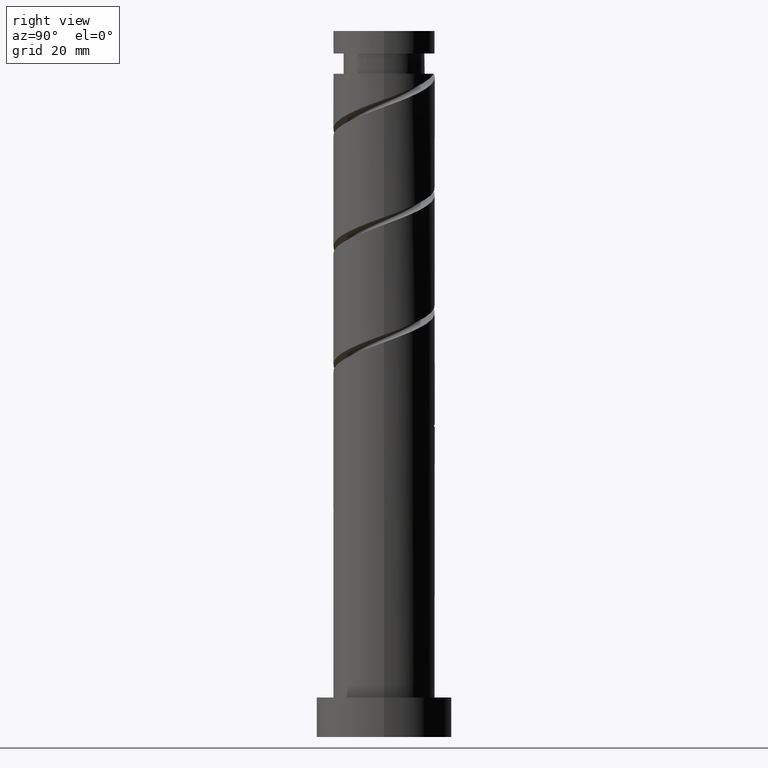
[diagram: clean part render]
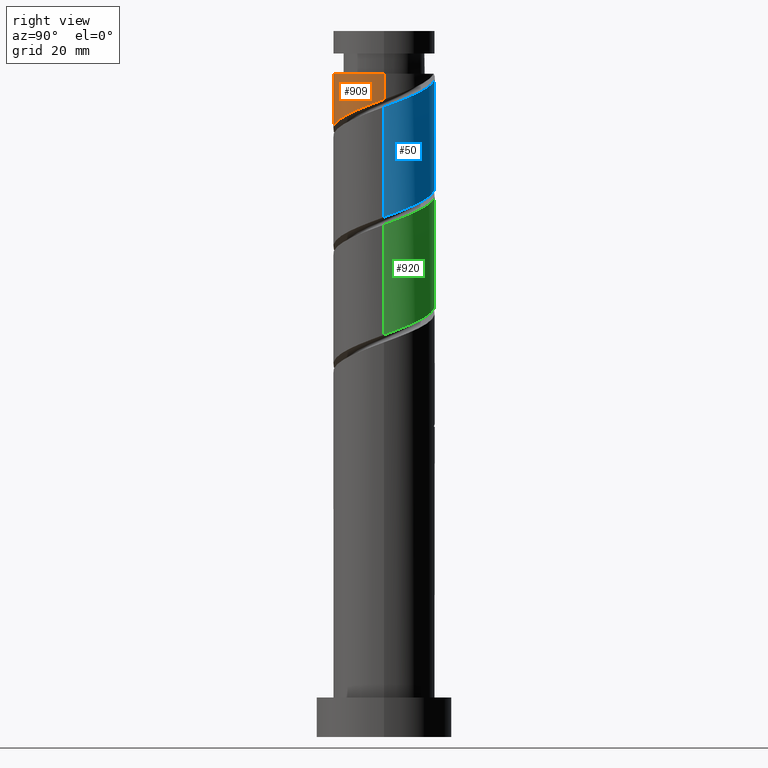
[diagram: same view with three faces highlighted in distinct colors, each labeled with its STEP entity id]
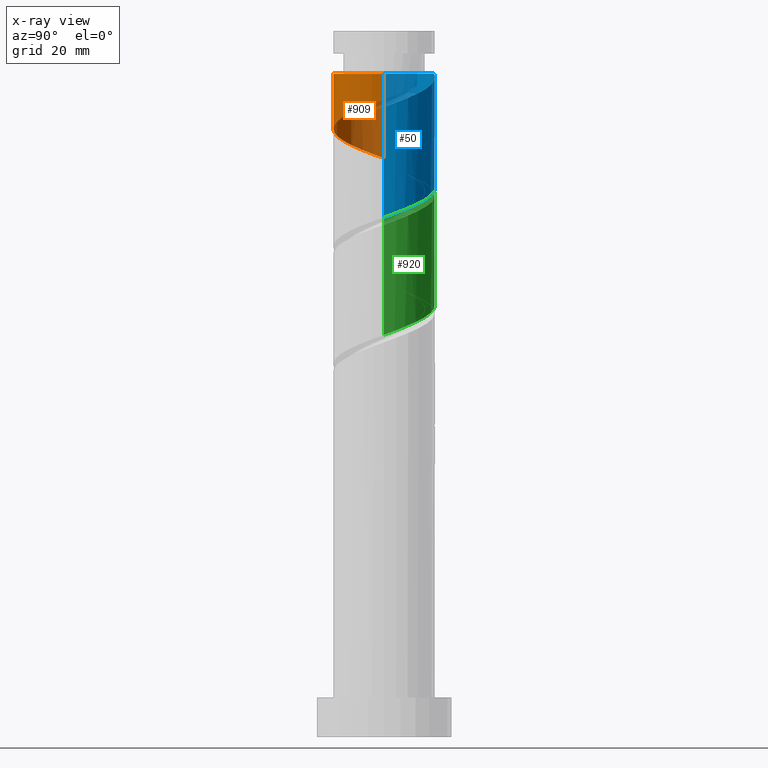
[diagram: x-ray of the same camera — body ghosted, the three highlighted faces saturated]
A machine part, right view with three faces highlighted in distinct colors.
The next image is the same camera in x-ray (body ghosted, the three faces saturated) — at least one of them is partly hidden behind the body in this view.
Their STEP definitions:

[orange] entity #909 — the highlighted cylindrical surface (partial cylindrical patch) has radius 9 mm, axis along (-0, -0, -1).
#1 = DIRECTION ( 'NONE',  ( -0.000000000000000000, -0.000000000000000000, -1.000000000000000000 ) ) ;
#28 = EDGE_CURVE ( 'NONE', #1074, #286, #1481, .T. ) ;
#54 = CARTESIAN_POINT ( 'NONE',  ( 9.000000000000000000, 4.557903246094585898E-15, 112.8787152593785379 ) ) ;
#152 = CARTESIAN_POINT ( 'NONE',  ( 0.000000000000000000, 0.000000000000000000, 117.4222461512415805 ) ) ;
#174 = VERTEX_POINT ( 'NONE', #1091 ) ;
#176 = CARTESIAN_POINT ( 'NONE',  ( -1.790977386791917647, -8.819999999999998508, 107.0055794845748807 ) ) ;
#228 = CARTESIAN_POINT ( 'NONE',  ( 6.082819795241432459, -6.633197067675506098, 110.1305794845749233 ) ) ;
#286 = VERTEX_POINT ( 'NONE', #812 ) ;
#296 = CARTESIAN_POINT ( 'NONE',  ( -9.000000000000000000, -0.5127636370178977332, 102.6515596819191387 ) ) ;
#341 = EDGE_CURVE ( 'NONE', #174, #1074, #1103, .T. ) ;
#350 = CARTESIAN_POINT ( 'NONE',  ( 3.735334782763716444, -8.188239985532636211, 109.0889128179082377 ) ) ;
#372 = CARTESIAN_POINT ( 'NONE',  ( 9.000000000000001776, 1.102182119232617911E-15, 125.0000000000000000 ) ) ;
#407 = LINE ( 'NONE', #655, #897 ) ;
#430 = CARTESIAN_POINT ( 'NONE',  ( -8.779858894525441215, -2.438444975412141336, 103.3597461512415805 ) ) ;
#482 = CARTESIAN_POINT ( 'NONE',  ( -0.3940266231295084798, -9.103662951040936591, 107.5264128179082661 ) ) ;
#521 = EDGE_CURVE ( 'NONE', #174, #1167, #642, .T. ) ;
#553 = CARTESIAN_POINT ( 'NONE',  ( -3.187928150454328868, -8.536337048959056872, 106.4847461512415805 ) ) ;
#592 = CARTESIAN_POINT ( 'NONE',  ( 8.536337048959056872, -3.187928150454328868, 111.6930794845749375 ) ) ;
#597 = EDGE_CURVE ( 'NONE', #1167, #286, #407, .T. ) ;
#634 = CARTESIAN_POINT ( 'NONE',  ( -9.000000000000000000, 0.000000000000000000, 117.4222461512415805 ) ) ;
#642 = CIRCLE ( 'NONE', #1429, 9.000000000000000000 ) ;
#655 = CARTESIAN_POINT ( 'NONE',  ( -9.000000000000001776, 0.000000000000000000, 125.0000000000000000 ) ) ;
#667 = CARTESIAN_POINT ( 'NONE',  ( -8.941760922783190679, -1.022209176141316567, 102.8389128179082519 ) ) ;
#668 = VECTOR ( 'NONE', #1452, 1000.000000000000000 ) ;
#676 = CARTESIAN_POINT ( 'NONE',  ( -4.428850604632755150, -7.834876024663318006, 105.9639128179082661 ) ) ;
#715 = CARTESIAN_POINT ( 'NONE',  ( 2.438444975412140447, -8.779858894525441215, 108.5680794845748949 ) ) ;
#720 = FACE_OUTER_BOUND ( 'NONE', #1435, .T. ) ;
#767 = AXIS2_PLACEMENT_3D ( 'NONE', #1095, #1, #1222 ) ;
#782 = DIRECTION ( 'NONE',  ( -0.000000000000000000, -0.000000000000000000, -1.000000000000000000 ) ) ;
#795 = CARTESIAN_POINT ( 'NONE',  ( -5.669773058811180988, -7.133415000367572922, 105.4430794845749233 ) ) ;
#812 = CARTESIAN_POINT ( 'NONE',  ( -9.000000000000000000, -5.517461824219762125E-15, 102.4620485927118523 ) ) ;
#839 = CARTESIAN_POINT ( 'NONE',  ( 7.834876024663318006, -4.428850604632755150, 111.1722461512415663 ) ) ;
#883 = DIRECTION ( 'NONE',  ( -0.000000000000000000, -0.000000000000000000, -1.000000000000000000 ) ) ;
#897 = VECTOR ( 'NONE', #883, 1000.000000000000000 ) ;
#909 = ADVANCED_FACE ( 'NONE', ( #720 ), #1340, .T. ) ;
#917 = CARTESIAN_POINT ( 'NONE',  ( -9.000000000000000000, -5.517461824219762125E-15, 102.4620485927118523 ) ) ;
#923 = ORIENTED_EDGE ( 'NONE', *, *, #28, .F. ) ;
#941 = ORIENTED_EDGE ( 'NONE', *, *, #341, .F. ) ;
#964 = CARTESIAN_POINT ( 'NONE',  ( 9.000000000000001776, -0.9045340337332837821, 112.5444106839706677 ) ) ;
#1038 = CARTESIAN_POINT ( 'NONE',  ( -6.633197067675506098, -6.082819795241432459, 104.9222461512415805 ) ) ;
#1074 = VERTEX_POINT ( 'NONE', #54 ) ;
#1083 = CARTESIAN_POINT ( 'NONE',  ( 8.819999999999998508, -1.790977386791918313, 112.2139128179082661 ) ) ;
#1091 = CARTESIAN_POINT ( 'NONE',  ( 9.000000000000000000, 1.102182119232617714E-15, 117.4222461512415805 ) ) ;
#1095 = CARTESIAN_POINT ( 'NONE',  ( 0.000000000000000000, 0.000000000000000000, 125.0000000000000000 ) ) ;
#1103 = LINE ( 'NONE', #372, #668 ) ;
#1159 = CARTESIAN_POINT ( 'NONE',  ( -7.596621076539832984, -5.032224590115292884, 104.4014128179082377 ) ) ;
#1167 = VERTEX_POINT ( 'NONE', #634 ) ;
#1203 = CARTESIAN_POINT ( 'NONE',  ( 1.022209176141316345, -8.941760922783190679, 108.0472461512415947 ) ) ;
#1222 = DIRECTION ( 'NONE',  ( -1.000000000000000000, 0.000000000000000000, 0.000000000000000000 ) ) ;
#1248 = DIRECTION ( 'NONE',  ( -1.000000000000000000, 0.000000000000000000, 0.000000000000000000 ) ) ;
#1324 = CARTESIAN_POINT ( 'NONE',  ( 5.032224590115292884, -7.596621076539833872, 109.6097461512415947 ) ) ;
#1340 = CYLINDRICAL_SURFACE ( 'NONE', #767, 9.000000000000001776 ) ;
#1391 = ORIENTED_EDGE ( 'NONE', *, *, #597, .T. ) ;
#1429 = AXIS2_PLACEMENT_3D ( 'NONE', #152, #782, #1248 ) ;
#1435 = EDGE_LOOP ( 'NONE', ( #941, #1574, #1391, #923 ) ) ;
#1442 = CARTESIAN_POINT ( 'NONE',  ( 7.133415000367572922, -5.669773058811180988, 110.6514128179082377 ) ) ;
#1452 = DIRECTION ( 'NONE',  ( -0.000000000000000000, -0.000000000000000000, -1.000000000000000000 ) ) ;
#1481 =( BOUNDED_CURVE ( )  B_SPLINE_CURVE ( 2, ( #1563, #964, #1083, #592, #839, #1442, #228, #1324, #350, #715, #1203, #482, #176, #553, #676, #795, #1038, #1159, #1521, #430, #667, #296, #917 ),
 .UNSPECIFIED., .F., .T. ) 
 B_SPLINE_CURVE_WITH_KNOTS ( ( 3, 2, 2, 2, 2, 2, 2, 2, 2, 2, 2, 3 ),
 ( 0.3045322023138550827, 0.3125000000000000000, 0.3250000000000000111, 0.3375000000000000222, 0.3499999999999999778, 0.3624999999999999889, 0.3750000000000000000, 0.3875000000000000111, 0.4000000000000000222, 0.4124999999999999778, 0.4249999999999999889, 0.4295322023138551382 ),
 .UNSPECIFIED. ) 
 CURVE ( )  GEOMETRIC_REPRESENTATION_ITEM ( )  RATIONAL_B_SPLINE_CURVE ( ( 0.9039174447099308507, 0.9019565955404600377, 0.9090909090909083945, 0.8978984914501245695, 0.9090909090909083945, 0.8978984914501245695, 0.9090909090909083945, 0.8978984914501245695, 0.9090909090909083945, 0.8978984914501245695, 0.9090909090909083945, 0.8978984914501245695, 0.9090909090909083945, 0.8978984914501245695, 0.9090909090909083945, 0.8978984914501245695, 0.9090909090909083945, 0.8978984914501245695, 0.9090909090909083945, 0.8978984914501245695, 0.9090909090909083945, 0.9050328050005729263, 0.9039174447099307397 ) ) 
 REPRESENTATION_ITEM ( '' )  );
#1521 = CARTESIAN_POINT ( 'NONE',  ( -8.188239985532636211, -3.735334782763716444, 103.8805794845749233 ) ) ;
#1563 = CARTESIAN_POINT ( 'NONE',  ( 9.000000000000000000, 4.557903246094586687E-15, 112.8787152593785521 ) ) ;
#1574 = ORIENTED_EDGE ( 'NONE', *, *, #521, .T. ) ;

[blue] entity #50 — the highlighted cylindrical surface (partial cylindrical patch) has radius 9 mm, axis along (-0, -0, -1).
#14 = CARTESIAN_POINT ( 'NONE',  ( 7.133415000367588910, 5.669773058811186317, 113.7764128179082519 ) ) ;
#37 = CARTESIAN_POINT ( 'NONE',  ( 6.633197067675507874, 6.082819795241432459, 94.50557948457489488 ) ) ;
#50 = ADVANCED_FACE ( 'NONE', ( #1503 ), #402, .T. ) ;
#62 = DIRECTION ( 'NONE',  ( -1.000000000000000000, 0.000000000000000000, 0.000000000000000000 ) ) ;
#90 = VERTEX_POINT ( 'NONE', #155 ) ;
#149 = CARTESIAN_POINT ( 'NONE',  ( -9.000000000000000000, -5.517461824219762125E-15, 102.4620485927118523 ) ) ;
#155 = CARTESIAN_POINT ( 'NONE',  ( 9.000000000000000000, 1.259420633789293503E-14, 92.04538192604519509 ) ) ;
#166 = CARTESIAN_POINT ( 'NONE',  ( 0.000000000000000000, 0.000000000000000000, 125.0000000000000000 ) ) ;
#168 = CARTESIAN_POINT ( 'NONE',  ( -1.022209176141317233, 8.941760922783190679, 97.63057948457489488 ) ) ;
#186 = DIRECTION ( 'NONE',  ( -0.000000000000000000, -0.000000000000000000, -1.000000000000000000 ) ) ;
#225 = CARTESIAN_POINT ( 'NONE',  ( 5.032224590115305318, 7.596621076539840089, 114.8180794845749091 ) ) ;
#250 = LINE ( 'NONE', #605, #593 ) ;
#286 = VERTEX_POINT ( 'NONE', #812 ) ;
#289 = CARTESIAN_POINT ( 'NONE',  ( -7.834876024663318006, 4.428850604632753374, 100.7555794845749091 ) ) ;
#299 = CARTESIAN_POINT ( 'NONE',  ( 8.188239985532637988, 3.735334782763715111, 93.46391281790826611 ) ) ;
#338 = CIRCLE ( 'NONE', #740, 9.000000000000000000 ) ;
#391 = ORIENTED_EDGE ( 'NONE', *, *, #1170, .F. ) ;
#402 = CYLINDRICAL_SURFACE ( 'NONE', #562, 9.000000000000001776 ) ;
#405 = CARTESIAN_POINT ( 'NONE',  ( 9.000000000000000000, 0.5127636370179007308, 92.23489301525248152 ) ) ;
#407 = LINE ( 'NONE', #655, #897 ) ;
#425 = CARTESIAN_POINT ( 'NONE',  ( 4.428850604632756038, 7.834876024663318006, 95.54724615124156628 ) ) ;
#502 = CARTESIAN_POINT ( 'NONE',  ( -1.790977386791916315, 8.820000000000012719, 117.4222461512415805 ) ) ;
#520 = CARTESIAN_POINT ( 'NONE',  ( -8.819999999999998508, 1.790977386791917647, 101.7972461512415805 ) ) ;
#527 = CARTESIAN_POINT ( 'NONE',  ( 7.596621076539832984, 5.032224590115291107, 93.98474615124155207 ) ) ;
#546 = CARTESIAN_POINT ( 'NONE',  ( 1.790977386791918757, 8.819999999999998508, 96.58891281790823768 ) ) ;
#558 = ORIENTED_EDGE ( 'NONE', *, *, #994, .T. ) ;
#562 = AXIS2_PLACEMENT_3D ( 'NONE', #166, #186, #62 ) ;
#581 = ORIENTED_EDGE ( 'NONE', *, *, #1468, .F. ) ;
#593 = VECTOR ( 'NONE', #726, 1000.000000000000000 ) ;
#597 = EDGE_CURVE ( 'NONE', #1167, #286, #407, .T. ) ;
#605 = CARTESIAN_POINT ( 'NONE',  ( 9.000000000000001776, 1.102182119232617911E-15, 125.0000000000000000 ) ) ;
#632 = ORIENTED_EDGE ( 'NONE', *, *, #597, .F. ) ;
#634 = CARTESIAN_POINT ( 'NONE',  ( -9.000000000000000000, 0.000000000000000000, 117.4222461512415805 ) ) ;
#645 = CARTESIAN_POINT ( 'NONE',  ( -3.735334782763717332, 8.188239985532636211, 98.67224615124156628 ) ) ;
#655 = CARTESIAN_POINT ( 'NONE',  ( -9.000000000000001776, 0.000000000000000000, 125.0000000000000000 ) ) ;
#661 = CARTESIAN_POINT ( 'NONE',  ( 0.3940266231295071475, 9.103662951040936591, 97.10974615124159470 ) ) ;
#726 = DIRECTION ( 'NONE',  ( -0.000000000000000000, -0.000000000000000000, -1.000000000000000000 ) ) ;
#740 = AXIS2_PLACEMENT_3D ( 'NONE', #1153, #1040, #1402 ) ;
#761 = CARTESIAN_POINT ( 'NONE',  ( -5.032224590115294660, 7.596621076539832984, 99.19307948457493751 ) ) ;
#771 = CARTESIAN_POINT ( 'NONE',  ( -9.000000000000000000, 0.9045340337332890002, 102.1277440173039963 ) ) ;
#780 = CARTESIAN_POINT ( 'NONE',  ( -6.082819795241432459, 6.633197067675506098, 99.71391281790825190 ) ) ;
#789 = CARTESIAN_POINT ( 'NONE',  ( -7.133415000367573811, 5.669773058811180988, 100.2347461512415805 ) ) ;
#812 = CARTESIAN_POINT ( 'NONE',  ( -9.000000000000000000, -5.517461824219762125E-15, 102.4620485927118523 ) ) ;
#862 = CARTESIAN_POINT ( 'NONE',  ( 9.000000000000010658, 3.178537790039623870E-15, 111.5491103764379659 ) ) ;
#883 = DIRECTION ( 'NONE',  ( -0.000000000000000000, -0.000000000000000000, -1.000000000000000000 ) ) ;
#897 = VECTOR ( 'NONE', #883, 1000.000000000000000 ) ;
#931 = CARTESIAN_POINT ( 'NONE',  ( 9.000000000000010658, 3.178537790039623476E-15, 111.5491103764379659 ) ) ;
#967 = CARTESIAN_POINT ( 'NONE',  ( -0.3940266231294912158, 9.103662951040949025, 116.9014128179082235 ) ) ;
#973 = CARTESIAN_POINT ( 'NONE',  ( 8.820000000000012719, 1.790977386791916759, 112.2139128179082235 ) ) ;
#980 = CARTESIAN_POINT ( 'NONE',  ( 9.000000000000012434, 0.9045340337332952174, 111.8834149518458361 ) ) ;
#994 = EDGE_CURVE ( 'NONE', #1167, #1104, #338, .T. ) ;
#1013 = CARTESIAN_POINT ( 'NONE',  ( 8.941760922783190679, 1.022209176141315679, 92.42224615124158049 ) ) ;
#1040 = DIRECTION ( 'NONE',  ( -0.000000000000000000, -0.000000000000000000, -1.000000000000000000 ) ) ;
#1104 = VERTEX_POINT ( 'NONE', #1379 ) ;
#1105 = CARTESIAN_POINT ( 'NONE',  ( 7.834876024663329552, 4.428850604632757815, 113.2555794845749233 ) ) ;
#1126 = CARTESIAN_POINT ( 'NONE',  ( -2.438444975412141336, 8.779858894525441215, 98.15141281790825190 ) ) ;
#1139 = EDGE_LOOP ( 'NONE', ( #581, #1527, #391, #632, #558 ) ) ;
#1153 = CARTESIAN_POINT ( 'NONE',  ( 0.000000000000000000, 0.000000000000000000, 117.4222461512415805 ) ) ;
#1167 = VERTEX_POINT ( 'NONE', #634 ) ;
#1170 = EDGE_CURVE ( 'NONE', #286, #90, #1206, .T. ) ;
#1195 = VERTEX_POINT ( 'NONE', #931 ) ;
#1199 = CARTESIAN_POINT ( 'NONE',  ( 6.082819795241444893, 6.633197067675514091, 114.2972461512415663 ) ) ;
#1206 =( BOUNDED_CURVE ( )  B_SPLINE_CURVE ( 2, ( #149, #771, #520, #1488, #289, #789, #780, #761, #645, #1126, #168, #661, #546, #1515, #425, #1495, #37, #527, #299, #1272, #1013, #405, #1311 ),
 .UNSPECIFIED., .F., .T. ) 
 B_SPLINE_CURVE_WITH_KNOTS ( ( 3, 2, 2, 2, 2, 2, 2, 2, 2, 2, 2, 3 ),
 ( 0.4295322023138551382, 0.4375000000000000000, 0.4500000000000000111, 0.4625000000000000222, 0.4749999999999999778, 0.4874999999999999889, 0.5000000000000000000, 0.5124999999999999556, 0.5250000000000000222, 0.5374999999999999778, 0.5500000000000000444, 0.5545322023138551382 ),
 .UNSPECIFIED. ) 
 CURVE ( )  GEOMETRIC_REPRESENTATION_ITEM ( )  RATIONAL_B_SPLINE_CURVE ( ( 0.9039174447099307397, 0.9019565955404600377, 0.9090909090909083945, 0.8978984914501245695, 0.9090909090909083945, 0.8978984914501245695, 0.9090909090909083945, 0.8978984914501245695, 0.9090909090909083945, 0.8978984914501245695, 0.9090909090909083945, 0.8978984914501245695, 0.9090909090909083945, 0.8978984914501245695, 0.9090909090909083945, 0.8978984914501245695, 0.9090909090909083945, 0.8978984914501245695, 0.9090909090909083945, 0.8978984914501245695, 0.9090909090909083945, 0.9050328050005729263, 0.9039174447099307397 ) ) 
 REPRESENTATION_ITEM ( '' )  );
#1231 = CARTESIAN_POINT ( 'NONE',  ( 2.438444975412149329, 8.779858894525451873, 115.8597461512415663 ) ) ;
#1272 = CARTESIAN_POINT ( 'NONE',  ( 8.779858894525442992, 2.438444975412140447, 92.94307948457490909 ) ) ;
#1311 = CARTESIAN_POINT ( 'NONE',  ( 9.000000000000000000, 1.259420633789293503E-14, 92.04538192604519509 ) ) ;
#1353 = CARTESIAN_POINT ( 'NONE',  ( 1.022209176141323006, 8.941760922783201337, 116.3805794845749091 ) ) ;
#1379 = CARTESIAN_POINT ( 'NONE',  ( -1.790977386791916093, 8.820000000000012719, 117.4222461512415805 ) ) ;
#1402 = DIRECTION ( 'NONE',  ( -1.000000000000000000, 0.000000000000000000, 0.000000000000000000 ) ) ;
#1439 = CARTESIAN_POINT ( 'NONE',  ( 3.735334782763727102, 8.188239985532646870, 115.3389128179082235 ) ) ;
#1446 = CARTESIAN_POINT ( 'NONE',  ( 8.536337048959071083, 3.187928150454328868, 112.7347461512415236 ) ) ;
#1468 = EDGE_CURVE ( 'NONE', #1195, #1104, #1537, .T. ) ;
#1479 = EDGE_CURVE ( 'NONE', #1195, #90, #250, .T. ) ;
#1488 = CARTESIAN_POINT ( 'NONE',  ( -8.536337048959060425, 3.187928150454327536, 101.2764128179082519 ) ) ;
#1495 = CARTESIAN_POINT ( 'NONE',  ( 5.669773058811181876, 7.133415000367572922, 95.02641281790826611 ) ) ;
#1503 = FACE_OUTER_BOUND ( 'NONE', #1139, .T. ) ;
#1515 = CARTESIAN_POINT ( 'NONE',  ( 3.187928150454329312, 8.536337048959056872, 96.06807948457488067 ) ) ;
#1527 = ORIENTED_EDGE ( 'NONE', *, *, #1479, .T. ) ;
#1537 =( BOUNDED_CURVE ( )  B_SPLINE_CURVE ( 2, ( #862, #980, #973, #1446, #1105, #14, #1199, #225, #1439, #1231, #1353, #967, #502 ),
 .UNSPECIFIED., .F., .T. ) 
 B_SPLINE_CURVE_WITH_KNOTS ( ( 3, 2, 2, 2, 2, 2, 3 ),
 ( 0.6795322023138552492, 0.6875000000000000000, 0.6999999999999999556, 0.7124999999999999112, 0.7249999999999998668, 0.7374999999999999334, 0.7499999999999998890 ),
 .UNSPECIFIED. ) 
 CURVE ( )  GEOMETRIC_REPRESENTATION_ITEM ( )  RATIONAL_B_SPLINE_CURVE ( ( 0.9039174447099369569, 0.9019565955404662549, 0.9090909090909147228, 0.8978984914501307868, 0.9090909090909147228, 0.8978984914501307868, 0.9090909090909147228, 0.8978984914501307868, 0.9090909090909147228, 0.8978984914501307868, 0.9090909090909147228, 0.8978984914501308978, 0.9090909090909146117 ) ) 
 REPRESENTATION_ITEM ( '' )  );

[green] entity #920 — the highlighted cylindrical surface (partial cylindrical patch) has radius 9 mm, axis along (-0, -0, -1).
#71 = EDGE_CURVE ( 'NONE', #682, #616, #1278, .T. ) ;
#78 = CARTESIAN_POINT ( 'NONE',  ( -0.3940266231295038724, 9.103662951040947249, 96.06807948457488067 ) ) ;
#87 = CARTESIAN_POINT ( 'NONE',  ( 9.000000000000010658, 7.856385858399825439E-15, 90.71577704310462309 ) ) ;
#111 = EDGE_CURVE ( 'NONE', #750, #1027, #412, .T. ) ;
#116 = CARTESIAN_POINT ( 'NONE',  ( -8.188239985532646870, 3.735334782763724881, 99.71391281790825190 ) ) ;
#181 = CARTESIAN_POINT ( 'NONE',  ( -3.735334782763717332, 8.188239985532636211, 77.83891281790825190 ) ) ;
#192 = CARTESIAN_POINT ( 'NONE',  ( 9.000000000000000000, 1.259420633789293503E-14, 71.21204859271185228 ) ) ;
#209 = ORIENTED_EDGE ( 'NONE', *, *, #71, .F. ) ;
#226 = CARTESIAN_POINT ( 'NONE',  ( 9.000000000000010658, 7.856385858399825439E-15, 90.71577704310462309 ) ) ;
#242 = DIRECTION ( 'NONE',  ( -1.000000000000000000, 0.000000000000000000, 0.000000000000000000 ) ) ;
#284 = CARTESIAN_POINT ( 'NONE',  ( 8.188239985532637988, 3.735334782763715111, 72.63057948457490909 ) ) ;
#307 = CARTESIAN_POINT ( 'NONE',  ( -8.819999999999998508, 1.790977386791917647, 80.96391281790822347 ) ) ;
#320 = CARTESIAN_POINT ( 'NONE',  ( 7.133415000367588910, 5.669773058811186317, 92.94307948457490909 ) ) ;
#329 = CARTESIAN_POINT ( 'NONE',  ( 6.082819795241444893, 6.633197067675514091, 93.46391281790823768 ) ) ;
#347 = CARTESIAN_POINT ( 'NONE',  ( -8.941760922783201337, 1.022209176141320564, 100.7555794845748807 ) ) ;
#362 = DIRECTION ( 'NONE',  ( -0.000000000000000000, -0.000000000000000000, -1.000000000000000000 ) ) ;
#398 = CARTESIAN_POINT ( 'NONE',  ( 7.596621076539832984, 5.032224590115291107, 73.15141281790823768 ) ) ;
#412 = LINE ( 'NONE', #1252, #814 ) ;
#418 = CARTESIAN_POINT ( 'NONE',  ( 1.790977386791918757, 8.819999999999998508, 75.75557948457490909 ) ) ;
#453 = CARTESIAN_POINT ( 'NONE',  ( -5.669773058811186317, 7.133415000367587133, 98.15141281790822347 ) ) ;
#484 = EDGE_CURVE ( 'NONE', #616, #1027, #600, .T. ) ;
#490 = FACE_OUTER_BOUND ( 'NONE', #869, .T. ) ;
#523 = CARTESIAN_POINT ( 'NONE',  ( 9.000000000000000000, 0.5127636370179007308, 71.40155968191912450 ) ) ;
#526 = DIRECTION ( 'NONE',  ( -0.000000000000000000, -0.000000000000000000, -1.000000000000000000 ) ) ;
#539 = CARTESIAN_POINT ( 'NONE',  ( 6.633197067675507874, 6.082819795241432459, 73.67224615124155207 ) ) ;
#554 = CARTESIAN_POINT ( 'NONE',  ( 9.000000000000000000, 1.259420633789293503E-14, 71.21204859271185228 ) ) ;
#571 = CARTESIAN_POINT ( 'NONE',  ( -1.790977386791916315, 8.820000000000012719, 96.58891281790823768 ) ) ;
#600 =( BOUNDED_CURVE ( )  B_SPLINE_CURVE ( 2, ( #614, #1404, #307, #921, #802, #1165, #1285, #1128, #181, #763, #891, #647, #418, #1042, #903, #1382, #539, #398, #284, #1137, #1525, #523, #192 ),
 .UNSPECIFIED., .F., .T. ) 
 B_SPLINE_CURVE_WITH_KNOTS ( ( 3, 2, 2, 2, 2, 2, 2, 2, 2, 2, 2, 3 ),
 ( 0.6795322023138552492, 0.6875000000000000000, 0.6999999999999999556, 0.7125000000000000222, 0.7249999999999999778, 0.7375000000000000444, 0.7500000000000000000, 0.7624999999999999556, 0.7750000000000000222, 0.7874999999999999778, 0.8000000000000000444, 0.8045322023138551382 ),
 .UNSPECIFIED. ) 
 CURVE ( )  GEOMETRIC_REPRESENTATION_ITEM ( )  RATIONAL_B_SPLINE_CURVE ( ( 0.9039174447099306287, 0.9019565955404600377, 0.9090909090909083945, 0.8978984914501245695, 0.9090909090909083945, 0.8978984914501245695, 0.9090909090909083945, 0.8978984914501245695, 0.9090909090909083945, 0.8978984914501245695, 0.9090909090909083945, 0.8978984914501245695, 0.9090909090909083945, 0.8978984914501245695, 0.9090909090909083945, 0.8978984914501245695, 0.9090909090909083945, 0.8978984914501245695, 0.9090909090909083945, 0.8978984914501245695, 0.9090909090909083945, 0.9050328050005729263, 0.9039174447099307397 ) ) 
 REPRESENTATION_ITEM ( '' )  );
#614 = CARTESIAN_POINT ( 'NONE',  ( -9.000000000000001776, 1.163464775976776038E-14, 81.62871525937852368 ) ) ;
#616 = VERTEX_POINT ( 'NONE', #1273 ) ;
#647 = CARTESIAN_POINT ( 'NONE',  ( 0.3940266231295071475, 9.103662951040936591, 76.27641281790826611 ) ) ;
#674 = ORIENTED_EDGE ( 'NONE', *, *, #1347, .F. ) ;
#682 = VERTEX_POINT ( 'NONE', #1063 ) ;
#698 = CARTESIAN_POINT ( 'NONE',  ( 3.735334782763727102, 8.188239985532646870, 94.50557948457489488 ) ) ;
#750 = VERTEX_POINT ( 'NONE', #226 ) ;
#763 = CARTESIAN_POINT ( 'NONE',  ( -2.438444975412141336, 8.779858894525441215, 77.31807948457492330 ) ) ;
#793 = ORIENTED_EDGE ( 'NONE', *, *, #111, .T. ) ;
#802 = CARTESIAN_POINT ( 'NONE',  ( -7.834876024663318006, 4.428850604632753374, 79.92224615124158049 ) ) ;
#808 = CARTESIAN_POINT ( 'NONE',  ( 8.536337048959071083, 3.187928150454328868, 91.90141281790823768 ) ) ;
#814 = VECTOR ( 'NONE', #526, 1000.000000000000000 ) ;
#822 = CARTESIAN_POINT ( 'NONE',  ( 5.032224590115305318, 7.596621076539840089, 93.98474615124153786 ) ) ;
#823 = AXIS2_PLACEMENT_3D ( 'NONE', #1457, #362, #242 ) ;
#869 = EDGE_LOOP ( 'NONE', ( #674, #793, #1130, #209 ) ) ;
#891 = CARTESIAN_POINT ( 'NONE',  ( -1.022209176141317233, 8.941760922783190679, 76.79724615124159470 ) ) ;
#903 = CARTESIAN_POINT ( 'NONE',  ( 4.428850604632756038, 7.834876024663318006, 74.71391281790825190 ) ) ;
#920 = ADVANCED_FACE ( 'NONE', ( #490 ), #975, .T. ) ;
#921 = CARTESIAN_POINT ( 'NONE',  ( -8.536337048959060425, 3.187928150454327536, 80.44307948457495172 ) ) ;
#938 = CARTESIAN_POINT ( 'NONE',  ( -3.187928150454331533, 8.536337048959071083, 97.10974615124156628 ) ) ;
#975 = CYLINDRICAL_SURFACE ( 'NONE', #823, 9.000000000000001776 ) ;
#1027 = VERTEX_POINT ( 'NONE', #554 ) ;
#1042 = CARTESIAN_POINT ( 'NONE',  ( 3.187928150454329312, 8.536337048959056872, 75.23474615124158049 ) ) ;
#1046 = CARTESIAN_POINT ( 'NONE',  ( 9.000000000000012434, 0.9045340337332952174, 91.05008161851246484 ) ) ;
#1056 = CARTESIAN_POINT ( 'NONE',  ( 2.438444975412149329, 8.779858894525451873, 95.02641281790823768 ) ) ;
#1063 = CARTESIAN_POINT ( 'NONE',  ( -9.000000000000010658, -4.617875657227377167E-15, 101.1324437097712803 ) ) ;
#1099 = CARTESIAN_POINT ( 'NONE',  ( -9.000000000000008882, 0.5127636370179046166, 100.9429326205639939 ) ) ;
#1112 = CARTESIAN_POINT ( 'NONE',  ( -9.000000000000010658, -4.617875657227376378E-15, 101.1324437097712661 ) ) ;
#1125 = DIRECTION ( 'NONE',  ( -0.000000000000000000, -0.000000000000000000, -1.000000000000000000 ) ) ;
#1128 = CARTESIAN_POINT ( 'NONE',  ( -5.032224590115294660, 7.596621076539832984, 78.35974615124158049 ) ) ;
#1130 = ORIENTED_EDGE ( 'NONE', *, *, #484, .F. ) ;
#1137 = CARTESIAN_POINT ( 'NONE',  ( 8.779858894525442992, 2.438444975412140447, 72.10974615124159470 ) ) ;
#1151 = CARTESIAN_POINT ( 'NONE',  ( -9.000000000000001776, 0.000000000000000000, 125.0000000000000000 ) ) ;
#1165 = CARTESIAN_POINT ( 'NONE',  ( -7.133415000367573811, 5.669773058811180988, 79.40141281790826611 ) ) ;
#1207 = CARTESIAN_POINT ( 'NONE',  ( -6.633197067675516756, 6.082819795241444005, 98.67224615124159470 ) ) ;
#1221 = CARTESIAN_POINT ( 'NONE',  ( -7.596621076539840978, 5.032224590115302654, 99.19307948457492330 ) ) ;
#1252 = CARTESIAN_POINT ( 'NONE',  ( 9.000000000000001776, 1.102182119232617911E-15, 125.0000000000000000 ) ) ;
#1273 = CARTESIAN_POINT ( 'NONE',  ( -9.000000000000001776, 1.163464775976776038E-14, 81.62871525937852368 ) ) ;
#1278 = LINE ( 'NONE', #1151, #1445 ) ;
#1285 = CARTESIAN_POINT ( 'NONE',  ( -6.082819795241432459, 6.633197067675506098, 78.88057948457492330 ) ) ;
#1291 = CARTESIAN_POINT ( 'NONE',  ( 1.022209176141323006, 8.941760922783201337, 95.54724615124160891 ) ) ;
#1338 = CARTESIAN_POINT ( 'NONE',  ( -8.779858894525451873, 2.438444975412147997, 100.2347461512415663 ) ) ;
#1347 = EDGE_CURVE ( 'NONE', #750, #682, #1371, .T. ) ;
#1371 =( BOUNDED_CURVE ( )  B_SPLINE_CURVE ( 2, ( #87, #1046, #1531, #808, #1422, #320, #329, #822, #698, #1056, #1291, #78, #571, #938, #1538, #453, #1207, #1221, #116, #1338, #347, #1099, #1112 ),
 .UNSPECIFIED., .F., .T. ) 
 B_SPLINE_CURVE_WITH_KNOTS ( ( 3, 2, 2, 2, 2, 2, 2, 2, 2, 2, 2, 3 ),
 ( 0.4295322023138552492, 0.4375000000000000000, 0.4499999999999999556, 0.4625000000000000222, 0.4749999999999999778, 0.4875000000000000444, 0.5000000000000000000, 0.5124999999999999556, 0.5250000000000000222, 0.5374999999999999778, 0.5500000000000000444, 0.5545322023138551382 ),
 .UNSPECIFIED. ) 
 CURVE ( )  GEOMETRIC_REPRESENTATION_ITEM ( )  RATIONAL_B_SPLINE_CURVE ( ( 0.9039174447099369569, 0.9019565955404662549, 0.9090909090909147228, 0.8978984914501307868, 0.9090909090909147228, 0.8978984914501307868, 0.9090909090909147228, 0.8978984914501307868, 0.9090909090909147228, 0.8978984914501307868, 0.9090909090909147228, 0.8978984914501307868, 0.9090909090909147228, 0.8978984914501307868, 0.9090909090909147228, 0.8978984914501307868, 0.9090909090909147228, 0.8978984914501307868, 0.9090909090909147228, 0.8978984914501307868, 0.9090909090909147228, 0.9050328050005791436, 0.9039174447099369569 ) ) 
 REPRESENTATION_ITEM ( '' )  );
#1382 = CARTESIAN_POINT ( 'NONE',  ( 5.669773058811181876, 7.133415000367572922, 74.19307948457493751 ) ) ;
#1404 = CARTESIAN_POINT ( 'NONE',  ( -9.000000000000000000, 0.9045340337332975489, 81.29441068397066772 ) ) ;
#1422 = CARTESIAN_POINT ( 'NONE',  ( 7.834876024663329552, 4.428850604632757815, 92.42224615124159470 ) ) ;
#1445 = VECTOR ( 'NONE', #1125, 1000.000000000000000 ) ;
#1457 = CARTESIAN_POINT ( 'NONE',  ( 0.000000000000000000, 0.000000000000000000, 125.0000000000000000 ) ) ;
#1525 = CARTESIAN_POINT ( 'NONE',  ( 8.941760922783190679, 1.022209176141315679, 71.58891281790825190 ) ) ;
#1531 = CARTESIAN_POINT ( 'NONE',  ( 8.820000000000012719, 1.790977386791916759, 91.38057948457488067 ) ) ;
#1538 = CARTESIAN_POINT ( 'NONE',  ( -4.428850604632757815, 7.834876024663329552, 97.63057948457490909 ) ) ;